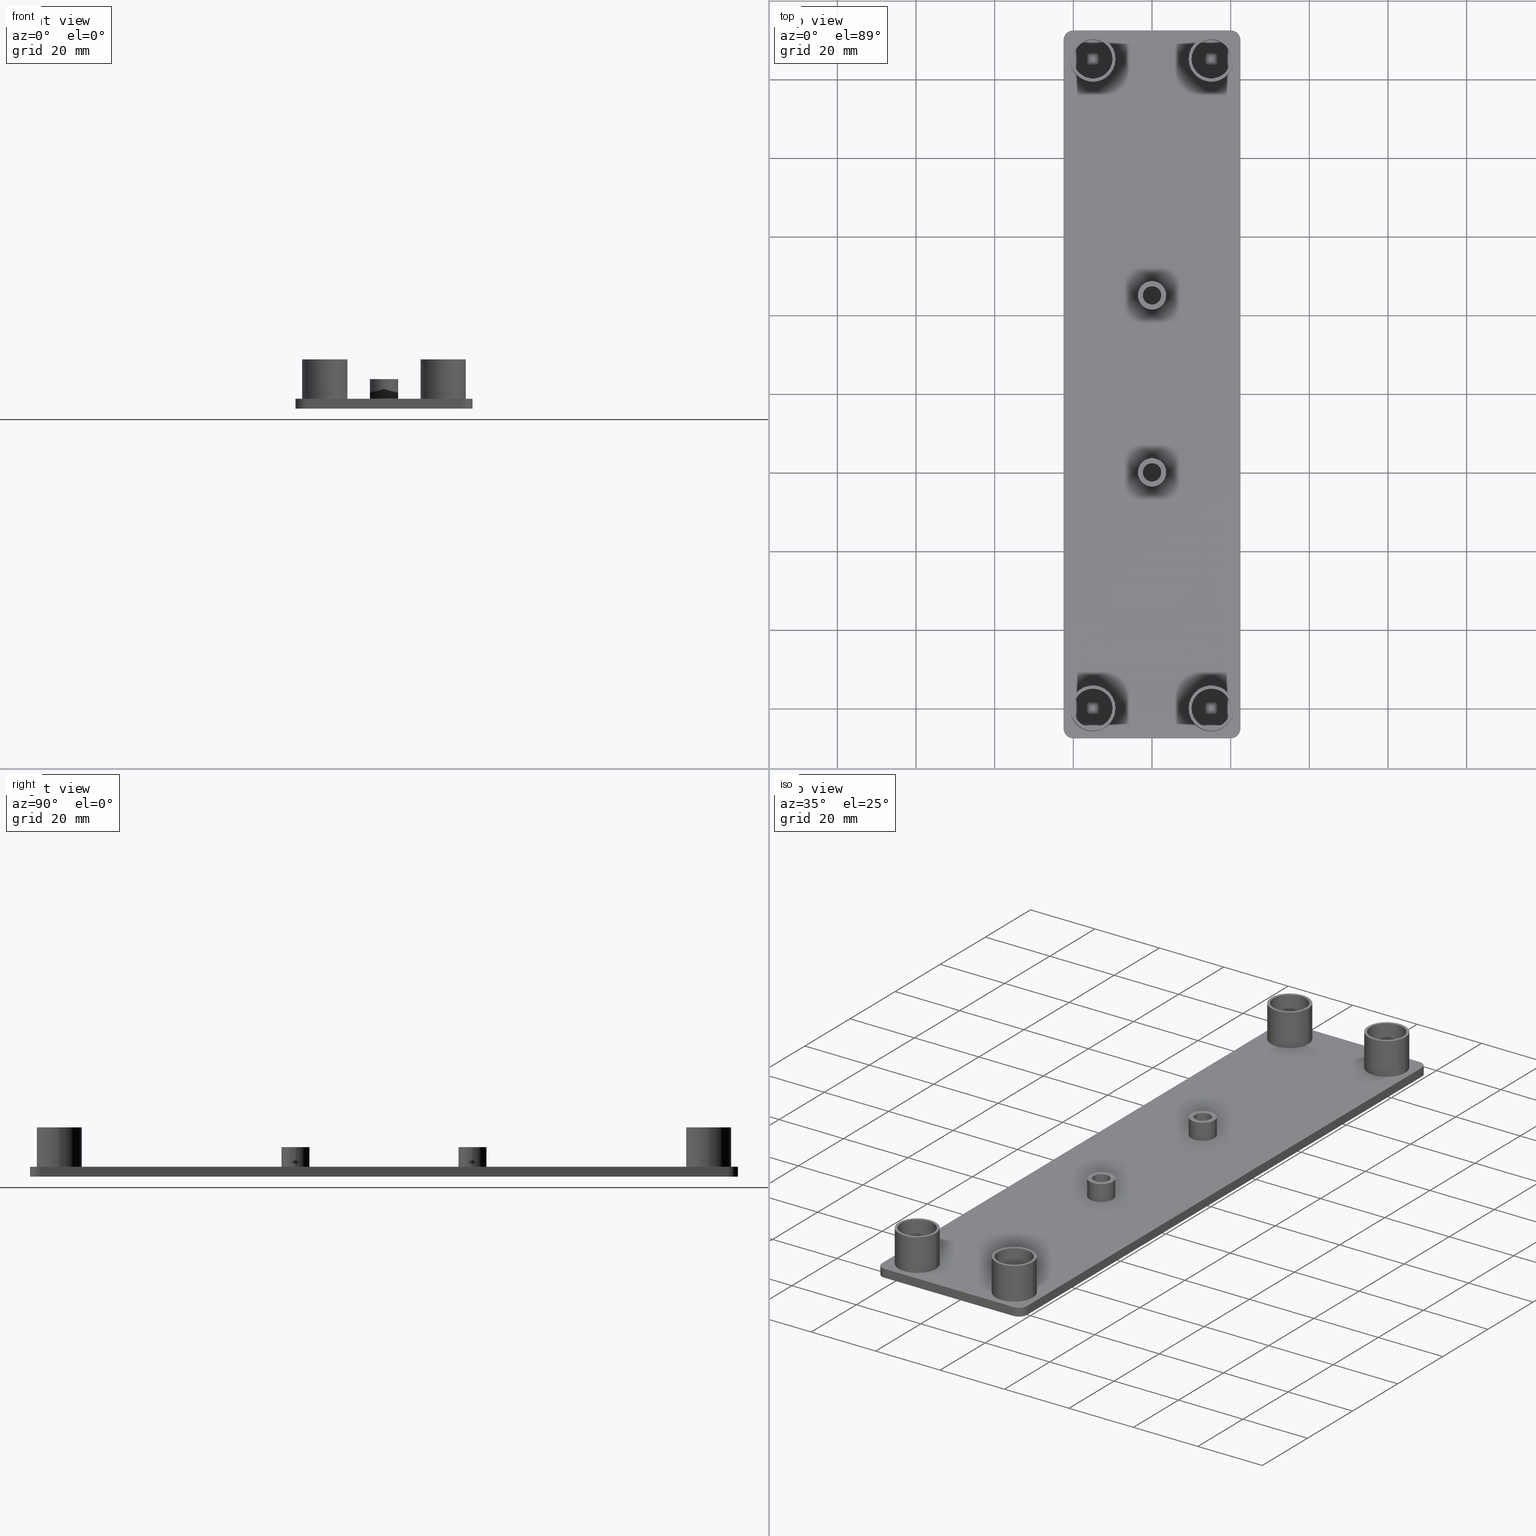
[diagram: canonical four-view strip — front | top / right | iso, engineering-drawing reading convention]
A machine part, canonical four-view strip (front | top / right | iso — engineering-drawing reading convention). The complete STEP part file that produces these views, byte-faithful:
ISO-10303-21;
HEADER;
/****************************************************************
 * Generated by software with PDE/Lib inside                    *
 * PDElib Version v4.4, created Mon 02/23/2004                  *
 * International Technegroup Inc. (www.iti-oh.com)              *
 ****************************************************************/
FILE_DESCRIPTION(('STEP AP203'),'2;1');
FILE_NAME('18.070.00.stp','2011-03-07T08:47:42',(''),(''),'2009.3.110','THINKDESIGN','');
FILE_SCHEMA(('CONFIG_CONTROL_DESIGN'));
ENDSEC;
DATA;
#2=CARTESIAN_POINT('',(-27.000009683665212,-85.500041855611016,0.0));
#3=DIRECTION('',(0.0,0.0,1.0));
#4=DIRECTION('',(1.0,0.0,0.0));
#5=AXIS2_PLACEMENT_3D('',#2,#3,#4);
#6=PLANE('',#5);
#7=CARTESIAN_POINT('',(10.049977999959527,105.049999999579540,0.0));
#8=VERTEX_POINT('',#7);
#9=CARTESIAN_POINT('',(20.049977999919520,105.049999999579540,0.0));
#10=VERTEX_POINT('',#9);
#11=CARTESIAN_POINT('',(15.049977999939529,105.049999999579540,0.0));
#12=DIRECTION('',(0.0,0.0,-1.0));
#13=DIRECTION('',(1.0,0.0,0.0));
#14=AXIS2_PLACEMENT_3D('',#11,#12,#13);
#15=CIRCLE('',#14,4.999999999980001);
#16=EDGE_CURVE('',#8,#10,#15,.T.);
#17=ORIENTED_EDGE('',*,*,#16,.F.);
#18=CARTESIAN_POINT('',(15.049977999939529,105.049999999579540,0.0));
#19=DIRECTION('',(0.0,0.0,-1.0));
#20=DIRECTION('',(1.0,0.0,0.0));
#21=AXIS2_PLACEMENT_3D('',#18,#19,#20);
#22=CIRCLE('',#21,4.999999999980001);
#23=EDGE_CURVE('',#10,#8,#22,.T.);
#24=ORIENTED_EDGE('',*,*,#23,.F.);
#25=EDGE_LOOP('',(#17,#24));
#26=FACE_OUTER_BOUND('',#25,.T.);
#27=ADVANCED_FACE('',(#26),#6,.T.);
#28=CARTESIAN_POINT('',(-27.000009683665212,-85.500041855611016,0.0));
#29=DIRECTION('',(0.0,0.0,1.0));
#30=DIRECTION('',(1.0,0.0,0.0));
#31=AXIS2_PLACEMENT_3D('',#28,#29,#30);
#32=PLANE('',#31);
#33=CARTESIAN_POINT('',(-20.050021999919874,105.050044999579770,0.0));
#34=VERTEX_POINT('',#33);
#35=CARTESIAN_POINT('',(-10.050021999959881,105.050044999579770,0.0));
#36=VERTEX_POINT('',#35);
#37=CARTESIAN_POINT('',(-15.050021999939872,105.050044999579770,0.0));
#38=DIRECTION('',(0.0,0.0,-1.0));
#39=DIRECTION('',(1.0,0.0,0.0));
#40=AXIS2_PLACEMENT_3D('',#37,#38,#39);
#41=CIRCLE('',#40,4.999999999980001);
#42=EDGE_CURVE('',#34,#36,#41,.T.);
#43=ORIENTED_EDGE('',*,*,#42,.F.);
#44=CARTESIAN_POINT('',(-15.050021999939872,105.050044999579770,0.0));
#45=DIRECTION('',(0.0,0.0,-1.0));
#46=DIRECTION('',(1.0,0.0,0.0));
#47=AXIS2_PLACEMENT_3D('',#44,#45,#46);
#48=CIRCLE('',#47,4.999999999980001);
#49=EDGE_CURVE('',#36,#34,#48,.T.);
#50=ORIENTED_EDGE('',*,*,#49,.F.);
#51=EDGE_LOOP('',(#43,#50));
#52=FACE_OUTER_BOUND('',#51,.T.);
#53=ADVANCED_FACE('',(#52),#32,.T.);
#54=CARTESIAN_POINT('',(-27.000009683665212,-85.500041855611016,0.0));
#55=DIRECTION('',(0.0,0.0,1.0));
#56=DIRECTION('',(1.0,0.0,0.0));
#57=AXIS2_PLACEMENT_3D('',#54,#55,#56);
#58=PLANE('',#57);
#59=CARTESIAN_POINT('',(-2.349999999990601,44.999999999819920,0.0));
#60=VERTEX_POINT('',#59);
#61=CARTESIAN_POINT('',(2.349999999990814,44.999999999819920,0.0));
#62=VERTEX_POINT('',#61);
#63=CARTESIAN_POINT('',(0.0,44.999999999819920,0.0));
#64=DIRECTION('',(0.0,0.0,-1.0));
#65=DIRECTION('',(1.0,0.0,0.0));
#66=AXIS2_PLACEMENT_3D('',#63,#64,#65);
#67=CIRCLE('',#66,2.349999999990601);
#68=EDGE_CURVE('',#60,#62,#67,.T.);
#69=ORIENTED_EDGE('',*,*,#68,.F.);
#70=CARTESIAN_POINT('',(0.0,44.999999999819920,0.0));
#71=DIRECTION('',(0.0,0.0,-1.0));
#72=DIRECTION('',(1.0,0.0,0.0));
#73=AXIS2_PLACEMENT_3D('',#70,#71,#72);
#74=CIRCLE('',#73,2.349999999990601);
#75=EDGE_CURVE('',#62,#60,#74,.T.);
#76=ORIENTED_EDGE('',*,*,#75,.F.);
#77=EDGE_LOOP('',(#69,#76));
#78=FACE_OUTER_BOUND('',#77,.T.);
#79=ADVANCED_FACE('',(#78),#58,.T.);
#80=CARTESIAN_POINT('',(-27.000009683665212,-85.500041855611016,0.0));
#81=DIRECTION('',(0.0,0.0,1.0));
#82=DIRECTION('',(1.0,0.0,0.0));
#83=AXIS2_PLACEMENT_3D('',#80,#81,#82);
#84=PLANE('',#83);
#85=CARTESIAN_POINT('',(-2.349999999990601,0.0,0.0));
#86=VERTEX_POINT('',#85);
#87=CARTESIAN_POINT('',(2.349999999990814,0.0,0.0));
#88=VERTEX_POINT('',#87);
#89=CARTESIAN_POINT('',(0.0,0.0,0.0));
#90=DIRECTION('',(0.0,0.0,-1.0));
#91=DIRECTION('',(1.0,0.0,0.0));
#92=AXIS2_PLACEMENT_3D('',#89,#90,#91);
#93=CIRCLE('',#92,2.349999999990601);
#94=EDGE_CURVE('',#86,#88,#93,.T.);
#95=ORIENTED_EDGE('',*,*,#94,.F.);
#96=CARTESIAN_POINT('',(0.0,0.0,0.0));
#97=DIRECTION('',(0.0,0.0,-1.0));
#98=DIRECTION('',(1.0,0.0,0.0));
#99=AXIS2_PLACEMENT_3D('',#96,#97,#98);
#100=CIRCLE('',#99,2.349999999990601);
#101=EDGE_CURVE('',#88,#86,#100,.T.);
#102=ORIENTED_EDGE('',*,*,#101,.F.);
#103=EDGE_LOOP('',(#95,#102));
#104=FACE_OUTER_BOUND('',#103,.T.);
#105=ADVANCED_FACE('',(#104),#84,.T.);
#106=CARTESIAN_POINT('',(-27.000009683665212,-85.500041855611016,0.0));
#107=DIRECTION('',(0.0,0.0,1.0));
#108=DIRECTION('',(1.0,0.0,0.0));
#109=AXIS2_PLACEMENT_3D('',#106,#107,#108);
#110=PLANE('',#109);
#111=CARTESIAN_POINT('',(-20.050018999916130,-60.050044999759848,0.0));
#112=VERTEX_POINT('',#111);
#113=CARTESIAN_POINT('',(-10.050018999956137,-60.050044999759848,0.0));
#114=VERTEX_POINT('',#113);
#115=CARTESIAN_POINT('',(-15.050018999936128,-60.050044999759848,0.0));
#116=DIRECTION('',(0.0,0.0,-1.0));
#117=DIRECTION('',(1.0,0.0,0.0));
#118=AXIS2_PLACEMENT_3D('',#115,#116,#117);
#119=CIRCLE('',#118,4.999999999980001);
#120=EDGE_CURVE('',#112,#114,#119,.T.);
#121=ORIENTED_EDGE('',*,*,#120,.F.);
#122=CARTESIAN_POINT('',(-15.050018999936128,-60.050044999759848,0.0));
#123=DIRECTION('',(0.0,0.0,-1.0));
#124=DIRECTION('',(1.0,0.0,0.0));
#125=AXIS2_PLACEMENT_3D('',#122,#123,#124);
#126=CIRCLE('',#125,4.999999999980001);
#127=EDGE_CURVE('',#114,#112,#126,.T.);
#128=ORIENTED_EDGE('',*,*,#127,.F.);
#129=EDGE_LOOP('',(#121,#128));
#130=FACE_OUTER_BOUND('',#129,.T.);
#131=ADVANCED_FACE('',(#130),#110,.T.);
#132=CARTESIAN_POINT('',(-27.000009683665212,-85.500041855611016,0.0));
#133=DIRECTION('',(0.0,0.0,1.0));
#134=DIRECTION('',(1.0,0.0,0.0));
#135=AXIS2_PLACEMENT_3D('',#132,#133,#134);
#136=PLANE('',#135);
#137=CARTESIAN_POINT('',(10.049980999963726,-60.050044999759848,0.0));
#138=VERTEX_POINT('',#137);
#139=CARTESIAN_POINT('',(20.049980999923719,-60.050044999759848,0.0));
#140=VERTEX_POINT('',#139);
#141=CARTESIAN_POINT('',(15.049980999943728,-60.050044999759848,0.0));
#142=DIRECTION('',(0.0,0.0,-1.0));
#143=DIRECTION('',(1.0,0.0,0.0));
#144=AXIS2_PLACEMENT_3D('',#141,#142,#143);
#145=CIRCLE('',#144,4.999999999980001);
#146=EDGE_CURVE('',#138,#140,#145,.T.);
#147=ORIENTED_EDGE('',*,*,#146,.F.);
#148=CARTESIAN_POINT('',(15.049980999943728,-60.050044999759848,0.0));
#149=DIRECTION('',(0.0,0.0,-1.0));
#150=DIRECTION('',(1.0,0.0,0.0));
#151=AXIS2_PLACEMENT_3D('',#148,#149,#150);
#152=CIRCLE('',#151,4.999999999980001);
#153=EDGE_CURVE('',#140,#138,#152,.T.);
#154=ORIENTED_EDGE('',*,*,#153,.F.);
#155=EDGE_LOOP('',(#147,#154));
#156=FACE_OUTER_BOUND('',#155,.T.);
#157=ADVANCED_FACE('',(#156),#136,.T.);
#158=CARTESIAN_POINT('',(15.049980999943728,-60.050044999759848,0.0));
#159=DIRECTION('',(0.0,0.0,1.0));
#160=DIRECTION('',(1.0,0.0,0.0));
#161=AXIS2_PLACEMENT_3D('',#158,#159,#160);
#162=CYLINDRICAL_SURFACE('',#161,5.749999999977001);
#163=CARTESIAN_POINT('',(9.299980999966728,-60.050044999759848,10.0));
#164=VERTEX_POINT('',#163);
#165=CARTESIAN_POINT('',(20.799980999920535,-60.050044999759848,10.0));
#166=VERTEX_POINT('',#165);
#167=CARTESIAN_POINT('',(15.049980999943728,-60.050044999759848,10.0));
#168=DIRECTION('',(0.0,0.0,1.0));
#169=DIRECTION('',(1.0,0.0,0.0));
#170=AXIS2_PLACEMENT_3D('',#167,#168,#169);
#171=CIRCLE('',#170,5.749999999977001);
#172=EDGE_CURVE('',#164,#166,#171,.T.);
#173=ORIENTED_EDGE('',*,*,#172,.F.);
#174=CARTESIAN_POINT('',(15.049980999943728,-60.050044999759848,10.0));
#175=DIRECTION('',(0.0,0.0,1.0));
#176=DIRECTION('',(1.0,0.0,0.0));
#177=AXIS2_PLACEMENT_3D('',#174,#175,#176);
#178=CIRCLE('',#177,5.749999999977001);
#179=EDGE_CURVE('',#166,#164,#178,.T.);
#180=ORIENTED_EDGE('',*,*,#179,.F.);
#181=CARTESIAN_POINT('',(20.799980999920535,-60.050044999759848,0.0));
#182=VERTEX_POINT('',#181);
#183=CARTESIAN_POINT('',(20.799980999920535,-60.050044999759848,0.0));
#184=DIRECTION('',(0.0,0.0,1.0));
#185=VECTOR('',#184,10.0);
#186=LINE('',#183,#185);
#187=EDGE_CURVE('',#182,#166,#186,.T.);
#188=ORIENTED_EDGE('',*,*,#187,.F.);
#189=CARTESIAN_POINT('',(9.299980999966728,-60.050044999759848,0.0));
#190=VERTEX_POINT('',#189);
#191=CARTESIAN_POINT('',(15.049980999943728,-60.050044999759848,0.0));
#192=DIRECTION('',(0.0,0.0,1.0));
#193=DIRECTION('',(1.0,0.0,0.0));
#194=AXIS2_PLACEMENT_3D('',#191,#192,#193);
#195=CIRCLE('',#194,5.749999999977001);
#196=EDGE_CURVE('',#182,#190,#195,.T.);
#197=ORIENTED_EDGE('',*,*,#196,.T.);
#198=CARTESIAN_POINT('',(15.049980999943728,-60.050044999759848,0.0));
#199=DIRECTION('',(0.0,0.0,1.0));
#200=DIRECTION('',(1.0,0.0,0.0));
#201=AXIS2_PLACEMENT_3D('',#198,#199,#200);
#202=CIRCLE('',#201,5.749999999977001);
#203=EDGE_CURVE('',#190,#182,#202,.T.);
#204=ORIENTED_EDGE('',*,*,#203,.T.);
#205=ORIENTED_EDGE('',*,*,#187,.T.);
#206=EDGE_LOOP('',(#173,#180,#188,#197,#204,#205));
#207=FACE_OUTER_BOUND('',#206,.T.);
#208=ADVANCED_FACE('',(#207),#162,.T.);
#209=CARTESIAN_POINT('',(15.049980999943728,-60.050044999759848,0.0));
#210=DIRECTION('',(0.0,0.0,-1.0));
#211=DIRECTION('',(1.0,-2.449294E-016,0.0));
#212=AXIS2_PLACEMENT_3D('',#209,#210,#211);
#213=CYLINDRICAL_SURFACE('',#212,4.999999999980001);
#214=CARTESIAN_POINT('',(10.049980999963726,-60.050044999759848,10.0));
#215=VERTEX_POINT('',#214);
#216=CARTESIAN_POINT('',(20.049980999923719,-60.050044999759848,10.0));
#217=VERTEX_POINT('',#216);
#218=CARTESIAN_POINT('',(15.049980999943728,-60.050044999759848,10.0));
#219=DIRECTION('',(0.0,0.0,-1.0));
#220=DIRECTION('',(1.0,0.0,0.0));
#221=AXIS2_PLACEMENT_3D('',#218,#219,#220);
#222=CIRCLE('',#221,4.999999999980001);
#223=EDGE_CURVE('',#215,#217,#222,.T.);
#224=ORIENTED_EDGE('',*,*,#223,.F.);
#225=CARTESIAN_POINT('',(15.049980999943728,-60.050044999759848,10.0));
#226=DIRECTION('',(0.0,0.0,-1.0));
#227=DIRECTION('',(1.0,0.0,0.0));
#228=AXIS2_PLACEMENT_3D('',#225,#226,#227);
#229=CIRCLE('',#228,4.999999999980001);
#230=EDGE_CURVE('',#217,#215,#229,.T.);
#231=ORIENTED_EDGE('',*,*,#230,.F.);
#232=CARTESIAN_POINT('',(20.049980999923719,-60.050044999759848,0.0));
#233=DIRECTION('',(0.0,0.0,1.0));
#234=VECTOR('',#233,10.0);
#235=LINE('',#232,#234);
#236=EDGE_CURVE('',#140,#217,#235,.T.);
#237=ORIENTED_EDGE('',*,*,#236,.F.);
#238=ORIENTED_EDGE('',*,*,#153,.T.);
#239=ORIENTED_EDGE('',*,*,#146,.T.);
#240=ORIENTED_EDGE('',*,*,#236,.T.);
#241=EDGE_LOOP('',(#224,#231,#237,#238,#239,#240));
#242=FACE_OUTER_BOUND('',#241,.T.);
#243=ADVANCED_FACE('',(#242),#213,.F.);
#244=CARTESIAN_POINT('',(8.149976275323752,-66.950049724377095,10.0));
#245=DIRECTION('',(0.0,0.0,1.0));
#246=DIRECTION('',(1.0,0.0,0.0));
#247=AXIS2_PLACEMENT_3D('',#244,#245,#246);
#248=PLANE('',#247);
#249=ORIENTED_EDGE('',*,*,#179,.T.);
#250=ORIENTED_EDGE('',*,*,#172,.T.);
#251=EDGE_LOOP('',(#249,#250));
#252=FACE_OUTER_BOUND('',#251,.T.);
#253=ORIENTED_EDGE('',*,*,#230,.T.);
#254=ORIENTED_EDGE('',*,*,#223,.T.);
#255=EDGE_LOOP('',(#253,#254));
#256=FACE_BOUND('',#255,.T.);
#257=ADVANCED_FACE('',(#252,#256),#248,.T.);
#258=CARTESIAN_POINT('',(-15.050018999936128,-60.050044999759848,0.0));
#259=DIRECTION('',(0.0,0.0,1.0));
#260=DIRECTION('',(1.0,0.0,0.0));
#261=AXIS2_PLACEMENT_3D('',#258,#259,#260);
#262=CYLINDRICAL_SURFACE('',#261,5.749999999977001);
#263=CARTESIAN_POINT('',(-20.800018999913128,-60.050044999759848,10.0));
#264=VERTEX_POINT('',#263);
#265=CARTESIAN_POINT('',(-9.300018999959320,-60.050044999759848,10.0));
#266=VERTEX_POINT('',#265);
#267=CARTESIAN_POINT('',(-15.050018999936128,-60.050044999759848,10.0));
#268=DIRECTION('',(0.0,0.0,1.0));
#269=DIRECTION('',(1.0,0.0,0.0));
#270=AXIS2_PLACEMENT_3D('',#267,#268,#269);
#271=CIRCLE('',#270,5.749999999977001);
#272=EDGE_CURVE('',#264,#266,#271,.T.);
#273=ORIENTED_EDGE('',*,*,#272,.F.);
#274=CARTESIAN_POINT('',(-15.050018999936128,-60.050044999759848,10.0));
#275=DIRECTION('',(0.0,0.0,1.0));
#276=DIRECTION('',(1.0,0.0,0.0));
#277=AXIS2_PLACEMENT_3D('',#274,#275,#276);
#278=CIRCLE('',#277,5.749999999977001);
#279=EDGE_CURVE('',#266,#264,#278,.T.);
#280=ORIENTED_EDGE('',*,*,#279,.F.);
#281=CARTESIAN_POINT('',(-9.300018999959320,-60.050044999759848,0.0));
#282=VERTEX_POINT('',#281);
#283=CARTESIAN_POINT('',(-9.300018999959320,-60.050044999759848,0.0));
#284=DIRECTION('',(0.0,0.0,1.0));
#285=VECTOR('',#284,10.0);
#286=LINE('',#283,#285);
#287=EDGE_CURVE('',#282,#266,#286,.T.);
#288=ORIENTED_EDGE('',*,*,#287,.F.);
#289=CARTESIAN_POINT('',(-20.800018999913128,-60.050044999759848,0.0));
#290=VERTEX_POINT('',#289);
#291=CARTESIAN_POINT('',(-15.050018999936128,-60.050044999759848,0.0));
#292=DIRECTION('',(0.0,0.0,1.0));
#293=DIRECTION('',(1.0,0.0,0.0));
#294=AXIS2_PLACEMENT_3D('',#291,#292,#293);
#295=CIRCLE('',#294,5.749999999977001);
#296=EDGE_CURVE('',#282,#290,#295,.T.);
#297=ORIENTED_EDGE('',*,*,#296,.T.);
#298=CARTESIAN_POINT('',(-15.050018999936128,-60.050044999759848,0.0));
#299=DIRECTION('',(0.0,0.0,1.0));
#300=DIRECTION('',(1.0,0.0,0.0));
#301=AXIS2_PLACEMENT_3D('',#298,#299,#300);
#302=CIRCLE('',#301,5.749999999977001);
#303=EDGE_CURVE('',#290,#282,#302,.T.);
#304=ORIENTED_EDGE('',*,*,#303,.T.);
#305=ORIENTED_EDGE('',*,*,#287,.T.);
#306=EDGE_LOOP('',(#273,#280,#288,#297,#304,#305));
#307=FACE_OUTER_BOUND('',#306,.T.);
#308=ADVANCED_FACE('',(#307),#262,.T.);
#309=CARTESIAN_POINT('',(-15.050018999936128,-60.050044999759848,0.0));
#310=DIRECTION('',(0.0,0.0,-1.0));
#311=DIRECTION('',(1.0,-2.449294E-016,0.0));
#312=AXIS2_PLACEMENT_3D('',#309,#310,#311);
#313=CYLINDRICAL_SURFACE('',#312,4.999999999980001);
#314=CARTESIAN_POINT('',(-20.050018999916130,-60.050044999759848,10.0));
#315=VERTEX_POINT('',#314);
#316=CARTESIAN_POINT('',(-10.050018999956137,-60.050044999759848,10.0));
#317=VERTEX_POINT('',#316);
#318=CARTESIAN_POINT('',(-15.050018999936128,-60.050044999759848,10.0));
#319=DIRECTION('',(0.0,0.0,-1.0));
#320=DIRECTION('',(1.0,0.0,0.0));
#321=AXIS2_PLACEMENT_3D('',#318,#319,#320);
#322=CIRCLE('',#321,4.999999999980001);
#323=EDGE_CURVE('',#315,#317,#322,.T.);
#324=ORIENTED_EDGE('',*,*,#323,.F.);
#325=CARTESIAN_POINT('',(-15.050018999936128,-60.050044999759848,10.0));
#326=DIRECTION('',(0.0,0.0,-1.0));
#327=DIRECTION('',(1.0,0.0,0.0));
#328=AXIS2_PLACEMENT_3D('',#325,#326,#327);
#329=CIRCLE('',#328,4.999999999980001);
#330=EDGE_CURVE('',#317,#315,#329,.T.);
#331=ORIENTED_EDGE('',*,*,#330,.F.);
#332=CARTESIAN_POINT('',(-10.050018999956137,-60.050044999759848,0.0));
#333=DIRECTION('',(0.0,0.0,1.0));
#334=VECTOR('',#333,10.0);
#335=LINE('',#332,#334);
#336=EDGE_CURVE('',#114,#317,#335,.T.);
#337=ORIENTED_EDGE('',*,*,#336,.F.);
#338=ORIENTED_EDGE('',*,*,#127,.T.);
#339=ORIENTED_EDGE('',*,*,#120,.T.);
#340=ORIENTED_EDGE('',*,*,#336,.T.);
#341=EDGE_LOOP('',(#324,#331,#337,#338,#339,#340));
#342=FACE_OUTER_BOUND('',#341,.T.);
#343=ADVANCED_FACE('',(#342),#313,.F.);
#344=CARTESIAN_POINT('',(-21.950023724556104,-66.950049724377095,10.0));
#345=DIRECTION('',(0.0,0.0,1.0));
#346=DIRECTION('',(1.0,0.0,0.0));
#347=AXIS2_PLACEMENT_3D('',#344,#345,#346);
#348=PLANE('',#347);
#349=ORIENTED_EDGE('',*,*,#279,.T.);
#350=ORIENTED_EDGE('',*,*,#272,.T.);
#351=EDGE_LOOP('',(#349,#350));
#352=FACE_OUTER_BOUND('',#351,.T.);
#353=ORIENTED_EDGE('',*,*,#330,.T.);
#354=ORIENTED_EDGE('',*,*,#323,.T.);
#355=EDGE_LOOP('',(#353,#354));
#356=FACE_BOUND('',#355,.T.);
#357=ADVANCED_FACE('',(#352,#356),#348,.T.);
#358=CARTESIAN_POINT('',(0.0,0.0,0.0));
#359=DIRECTION('',(0.0,0.0,1.0));
#360=DIRECTION('',(1.0,0.0,0.0));
#361=AXIS2_PLACEMENT_3D('',#358,#359,#360);
#362=CYLINDRICAL_SURFACE('',#361,3.599999999985601);
#363=CARTESIAN_POINT('',(-3.599999999985601,0.0,5.0));
#364=VERTEX_POINT('',#363);
#365=CARTESIAN_POINT('',(3.599999999985812,0.0,5.0));
#366=VERTEX_POINT('',#365);
#367=CARTESIAN_POINT('',(0.0,0.0,5.0));
#368=DIRECTION('',(0.0,0.0,1.0));
#369=DIRECTION('',(1.0,0.0,0.0));
#370=AXIS2_PLACEMENT_3D('',#367,#368,#369);
#371=CIRCLE('',#370,3.599999999985601);
#372=EDGE_CURVE('',#364,#366,#371,.T.);
#373=ORIENTED_EDGE('',*,*,#372,.F.);
#374=CARTESIAN_POINT('',(0.0,0.0,5.0));
#375=DIRECTION('',(0.0,0.0,1.0));
#376=DIRECTION('',(1.0,0.0,0.0));
#377=AXIS2_PLACEMENT_3D('',#374,#375,#376);
#378=CIRCLE('',#377,3.599999999985601);
#379=EDGE_CURVE('',#366,#364,#378,.T.);
#380=ORIENTED_EDGE('',*,*,#379,.F.);
#381=CARTESIAN_POINT('',(3.599999999985812,0.0,0.0));
#382=VERTEX_POINT('',#381);
#383=CARTESIAN_POINT('',(3.599999999985812,0.0,0.0));
#384=DIRECTION('',(0.0,0.0,1.0));
#385=VECTOR('',#384,5.0);
#386=LINE('',#383,#385);
#387=EDGE_CURVE('',#382,#366,#386,.T.);
#388=ORIENTED_EDGE('',*,*,#387,.F.);
#389=CARTESIAN_POINT('',(-3.599999999985601,0.0,0.0));
#390=VERTEX_POINT('',#389);
#391=CARTESIAN_POINT('',(0.0,0.0,0.0));
#392=DIRECTION('',(0.0,0.0,1.0));
#393=DIRECTION('',(1.0,0.0,0.0));
#394=AXIS2_PLACEMENT_3D('',#391,#392,#393);
#395=CIRCLE('',#394,3.599999999985601);
#396=EDGE_CURVE('',#382,#390,#395,.T.);
#397=ORIENTED_EDGE('',*,*,#396,.T.);
#398=CARTESIAN_POINT('',(0.0,0.0,0.0));
#399=DIRECTION('',(0.0,0.0,1.0));
#400=DIRECTION('',(1.0,0.0,0.0));
#401=AXIS2_PLACEMENT_3D('',#398,#399,#400);
#402=CIRCLE('',#401,3.599999999985601);
#403=EDGE_CURVE('',#390,#382,#402,.T.);
#404=ORIENTED_EDGE('',*,*,#403,.T.);
#405=ORIENTED_EDGE('',*,*,#387,.T.);
#406=EDGE_LOOP('',(#373,#380,#388,#397,#404,#405));
#407=FACE_OUTER_BOUND('',#406,.T.);
#408=ADVANCED_FACE('',(#407),#362,.T.);
#409=CARTESIAN_POINT('',(0.0,0.0,0.0));
#410=DIRECTION('',(0.0,0.0,-1.0));
#411=DIRECTION('',(1.0,-2.449294E-016,0.0));
#412=AXIS2_PLACEMENT_3D('',#409,#410,#411);
#413=CYLINDRICAL_SURFACE('',#412,2.349999999990601);
#414=CARTESIAN_POINT('',(-2.349999999990601,0.0,5.0));
#415=VERTEX_POINT('',#414);
#416=CARTESIAN_POINT('',(2.349999999990814,0.0,5.0));
#417=VERTEX_POINT('',#416);
#418=CARTESIAN_POINT('',(0.0,0.0,5.0));
#419=DIRECTION('',(0.0,0.0,-1.0));
#420=DIRECTION('',(1.0,0.0,0.0));
#421=AXIS2_PLACEMENT_3D('',#418,#419,#420);
#422=CIRCLE('',#421,2.349999999990601);
#423=EDGE_CURVE('',#415,#417,#422,.T.);
#424=ORIENTED_EDGE('',*,*,#423,.F.);
#425=CARTESIAN_POINT('',(0.0,0.0,5.0));
#426=DIRECTION('',(0.0,0.0,-1.0));
#427=DIRECTION('',(1.0,0.0,0.0));
#428=AXIS2_PLACEMENT_3D('',#425,#426,#427);
#429=CIRCLE('',#428,2.349999999990601);
#430=EDGE_CURVE('',#417,#415,#429,.T.);
#431=ORIENTED_EDGE('',*,*,#430,.F.);
#432=CARTESIAN_POINT('',(2.349999999990814,0.0,0.0));
#433=DIRECTION('',(0.0,0.0,1.0));
#434=VECTOR('',#433,5.0);
#435=LINE('',#432,#434);
#436=EDGE_CURVE('',#88,#417,#435,.T.);
#437=ORIENTED_EDGE('',*,*,#436,.F.);
#438=ORIENTED_EDGE('',*,*,#101,.T.);
#439=ORIENTED_EDGE('',*,*,#94,.T.);
#440=ORIENTED_EDGE('',*,*,#436,.T.);
#441=EDGE_LOOP('',(#424,#431,#437,#438,#439,#440));
#442=FACE_OUTER_BOUND('',#441,.T.);
#443=ADVANCED_FACE('',(#442),#413,.F.);
#444=CARTESIAN_POINT('',(-4.320004724464525,-4.320004724462706,5.0));
#445=DIRECTION('',(0.0,0.0,1.0));
#446=DIRECTION('',(1.0,0.0,0.0));
#447=AXIS2_PLACEMENT_3D('',#444,#445,#446);
#448=PLANE('',#447);
#449=ORIENTED_EDGE('',*,*,#379,.T.);
#450=ORIENTED_EDGE('',*,*,#372,.T.);
#451=EDGE_LOOP('',(#449,#450));
#452=FACE_OUTER_BOUND('',#451,.T.);
#453=ORIENTED_EDGE('',*,*,#430,.T.);
#454=ORIENTED_EDGE('',*,*,#423,.T.);
#455=EDGE_LOOP('',(#453,#454));
#456=FACE_BOUND('',#455,.T.);
#457=ADVANCED_FACE('',(#452,#456),#448,.T.);
#458=CARTESIAN_POINT('',(0.0,44.999999999819920,0.0));
#459=DIRECTION('',(0.0,0.0,1.0));
#460=DIRECTION('',(1.0,0.0,0.0));
#461=AXIS2_PLACEMENT_3D('',#458,#459,#460);
#462=CYLINDRICAL_SURFACE('',#461,3.599999999985601);
#463=CARTESIAN_POINT('',(-3.599999999985601,44.999999999819920,5.0));
#464=VERTEX_POINT('',#463);
#465=CARTESIAN_POINT('',(3.599999999985812,44.999999999819920,5.0));
#466=VERTEX_POINT('',#465);
#467=CARTESIAN_POINT('',(0.0,44.999999999819920,5.0));
#468=DIRECTION('',(0.0,0.0,1.0));
#469=DIRECTION('',(1.0,0.0,0.0));
#470=AXIS2_PLACEMENT_3D('',#467,#468,#469);
#471=CIRCLE('',#470,3.599999999985601);
#472=EDGE_CURVE('',#464,#466,#471,.T.);
#473=ORIENTED_EDGE('',*,*,#472,.F.);
#474=CARTESIAN_POINT('',(0.0,44.999999999819920,5.0));
#475=DIRECTION('',(0.0,0.0,1.0));
#476=DIRECTION('',(1.0,0.0,0.0));
#477=AXIS2_PLACEMENT_3D('',#474,#475,#476);
#478=CIRCLE('',#477,3.599999999985601);
#479=EDGE_CURVE('',#466,#464,#478,.T.);
#480=ORIENTED_EDGE('',*,*,#479,.F.);
#481=CARTESIAN_POINT('',(3.599999999985812,44.999999999819920,0.0));
#482=VERTEX_POINT('',#481);
#483=CARTESIAN_POINT('',(3.599999999985812,44.999999999819920,0.0));
#484=DIRECTION('',(0.0,0.0,1.0));
#485=VECTOR('',#484,5.0);
#486=LINE('',#483,#485);
#487=EDGE_CURVE('',#482,#466,#486,.T.);
#488=ORIENTED_EDGE('',*,*,#487,.F.);
#489=CARTESIAN_POINT('',(-3.599999999985601,44.999999999819920,0.0));
#490=VERTEX_POINT('',#489);
#491=CARTESIAN_POINT('',(0.0,44.999999999819920,0.0));
#492=DIRECTION('',(0.0,0.0,1.0));
#493=DIRECTION('',(1.0,0.0,0.0));
#494=AXIS2_PLACEMENT_3D('',#491,#492,#493);
#495=CIRCLE('',#494,3.599999999985601);
#496=EDGE_CURVE('',#482,#490,#495,.T.);
#497=ORIENTED_EDGE('',*,*,#496,.T.);
#498=CARTESIAN_POINT('',(0.0,44.999999999819920,0.0));
#499=DIRECTION('',(0.0,0.0,1.0));
#500=DIRECTION('',(1.0,0.0,0.0));
#501=AXIS2_PLACEMENT_3D('',#498,#499,#500);
#502=CIRCLE('',#501,3.599999999985601);
#503=EDGE_CURVE('',#490,#482,#502,.T.);
#504=ORIENTED_EDGE('',*,*,#503,.T.);
#505=ORIENTED_EDGE('',*,*,#487,.T.);
#506=EDGE_LOOP('',(#473,#480,#488,#497,#504,#505));
#507=FACE_OUTER_BOUND('',#506,.T.);
#508=ADVANCED_FACE('',(#507),#462,.T.);
#509=CARTESIAN_POINT('',(0.0,44.999999999819920,0.0));
#510=DIRECTION('',(0.0,0.0,-1.0));
#511=DIRECTION('',(1.0,-2.449294E-016,0.0));
#512=AXIS2_PLACEMENT_3D('',#509,#510,#511);
#513=CYLINDRICAL_SURFACE('',#512,2.349999999990601);
#514=CARTESIAN_POINT('',(-2.349999999990601,44.999999999819920,5.0));
#515=VERTEX_POINT('',#514);
#516=CARTESIAN_POINT('',(2.349999999990814,44.999999999819920,5.0));
#517=VERTEX_POINT('',#516);
#518=CARTESIAN_POINT('',(0.0,44.999999999819920,5.0));
#519=DIRECTION('',(0.0,0.0,-1.0));
#520=DIRECTION('',(1.0,0.0,0.0));
#521=AXIS2_PLACEMENT_3D('',#518,#519,#520);
#522=CIRCLE('',#521,2.349999999990601);
#523=EDGE_CURVE('',#515,#517,#522,.T.);
#524=ORIENTED_EDGE('',*,*,#523,.F.);
#525=CARTESIAN_POINT('',(0.0,44.999999999819920,5.0));
#526=DIRECTION('',(0.0,0.0,-1.0));
#527=DIRECTION('',(1.0,0.0,0.0));
#528=AXIS2_PLACEMENT_3D('',#525,#526,#527);
#529=CIRCLE('',#528,2.349999999990601);
#530=EDGE_CURVE('',#517,#515,#529,.T.);
#531=ORIENTED_EDGE('',*,*,#530,.F.);
#532=CARTESIAN_POINT('',(2.349999999990814,44.999999999819920,0.0));
#533=DIRECTION('',(0.0,0.0,1.0));
#534=VECTOR('',#533,5.0);
#535=LINE('',#532,#534);
#536=EDGE_CURVE('',#62,#517,#535,.T.);
#537=ORIENTED_EDGE('',*,*,#536,.F.);
#538=ORIENTED_EDGE('',*,*,#75,.T.);
#539=ORIENTED_EDGE('',*,*,#68,.T.);
#540=ORIENTED_EDGE('',*,*,#536,.T.);
#541=EDGE_LOOP('',(#524,#531,#537,#538,#539,#540));
#542=FACE_OUTER_BOUND('',#541,.T.);
#543=ADVANCED_FACE('',(#542),#513,.F.);
#544=CARTESIAN_POINT('',(-4.320004724464525,40.679995275373130,5.0));
#545=DIRECTION('',(0.0,0.0,1.0));
#546=DIRECTION('',(1.0,0.0,0.0));
#547=AXIS2_PLACEMENT_3D('',#544,#545,#546);
#548=PLANE('',#547);
#549=ORIENTED_EDGE('',*,*,#479,.T.);
#550=ORIENTED_EDGE('',*,*,#472,.T.);
#551=EDGE_LOOP('',(#549,#550));
#552=FACE_OUTER_BOUND('',#551,.T.);
#553=ORIENTED_EDGE('',*,*,#530,.T.);
#554=ORIENTED_EDGE('',*,*,#523,.T.);
#555=EDGE_LOOP('',(#553,#554));
#556=FACE_BOUND('',#555,.T.);
#557=ADVANCED_FACE('',(#552,#556),#548,.T.);
#558=CARTESIAN_POINT('',(-15.050021999939872,105.050044999579770,0.0));
#559=DIRECTION('',(0.0,0.0,1.0));
#560=DIRECTION('',(1.0,0.0,0.0));
#561=AXIS2_PLACEMENT_3D('',#558,#559,#560);
#562=CYLINDRICAL_SURFACE('',#561,5.749999999977001);
#563=CARTESIAN_POINT('',(-20.800021999916872,105.050044999579770,10.0));
#564=VERTEX_POINT('',#563);
#565=CARTESIAN_POINT('',(-9.300021999963064,105.050044999579770,10.0));
#566=VERTEX_POINT('',#565);
#567=CARTESIAN_POINT('',(-15.050021999939872,105.050044999579770,10.0));
#568=DIRECTION('',(0.0,0.0,1.0));
#569=DIRECTION('',(1.0,0.0,0.0));
#570=AXIS2_PLACEMENT_3D('',#567,#568,#569);
#571=CIRCLE('',#570,5.749999999977001);
#572=EDGE_CURVE('',#564,#566,#571,.T.);
#573=ORIENTED_EDGE('',*,*,#572,.F.);
#574=CARTESIAN_POINT('',(-15.050021999939872,105.050044999579770,10.0));
#575=DIRECTION('',(0.0,0.0,1.0));
#576=DIRECTION('',(1.0,0.0,0.0));
#577=AXIS2_PLACEMENT_3D('',#574,#575,#576);
#578=CIRCLE('',#577,5.749999999977001);
#579=EDGE_CURVE('',#566,#564,#578,.T.);
#580=ORIENTED_EDGE('',*,*,#579,.F.);
#581=CARTESIAN_POINT('',(-9.300021999963064,105.050044999579770,0.0));
#582=VERTEX_POINT('',#581);
#583=CARTESIAN_POINT('',(-9.300021999963064,105.050044999579770,0.0));
#584=DIRECTION('',(0.0,0.0,1.0));
#585=VECTOR('',#584,10.0);
#586=LINE('',#583,#585);
#587=EDGE_CURVE('',#582,#566,#586,.T.);
#588=ORIENTED_EDGE('',*,*,#587,.F.);
#589=CARTESIAN_POINT('',(-20.800021999916872,105.050044999579770,0.0));
#590=VERTEX_POINT('',#589);
#591=CARTESIAN_POINT('',(-15.050021999939872,105.050044999579770,0.0));
#592=DIRECTION('',(0.0,0.0,1.0));
#593=DIRECTION('',(1.0,0.0,0.0));
#594=AXIS2_PLACEMENT_3D('',#591,#592,#593);
#595=CIRCLE('',#594,5.749999999977001);
#596=EDGE_CURVE('',#582,#590,#595,.T.);
#597=ORIENTED_EDGE('',*,*,#596,.T.);
#598=CARTESIAN_POINT('',(-15.050021999939872,105.050044999579770,0.0));
#599=DIRECTION('',(0.0,0.0,1.0));
#600=DIRECTION('',(1.0,0.0,0.0));
#601=AXIS2_PLACEMENT_3D('',#598,#599,#600);
#602=CIRCLE('',#601,5.749999999977001);
#603=EDGE_CURVE('',#590,#582,#602,.T.);
#604=ORIENTED_EDGE('',*,*,#603,.T.);
#605=ORIENTED_EDGE('',*,*,#587,.T.);
#606=EDGE_LOOP('',(#573,#580,#588,#597,#604,#605));
#607=FACE_OUTER_BOUND('',#606,.T.);
#608=ADVANCED_FACE('',(#607),#562,.T.);
#609=CARTESIAN_POINT('',(-15.050021999939872,105.050044999579770,0.0));
#610=DIRECTION('',(0.0,0.0,-1.0));
#611=DIRECTION('',(1.0,-2.449294E-016,0.0));
#612=AXIS2_PLACEMENT_3D('',#609,#610,#611);
#613=CYLINDRICAL_SURFACE('',#612,4.999999999980001);
#614=CARTESIAN_POINT('',(-20.050021999919874,105.050044999579770,10.0));
#615=VERTEX_POINT('',#614);
#616=CARTESIAN_POINT('',(-10.050021999959881,105.050044999579770,10.0));
#617=VERTEX_POINT('',#616);
#618=CARTESIAN_POINT('',(-15.050021999939872,105.050044999579770,10.0));
#619=DIRECTION('',(0.0,0.0,-1.0));
#620=DIRECTION('',(1.0,0.0,0.0));
#621=AXIS2_PLACEMENT_3D('',#618,#619,#620);
#622=CIRCLE('',#621,4.999999999980001);
#623=EDGE_CURVE('',#615,#617,#622,.T.);
#624=ORIENTED_EDGE('',*,*,#623,.F.);
#625=CARTESIAN_POINT('',(-15.050021999939872,105.050044999579770,10.0));
#626=DIRECTION('',(0.0,0.0,-1.0));
#627=DIRECTION('',(1.0,0.0,0.0));
#628=AXIS2_PLACEMENT_3D('',#625,#626,#627);
#629=CIRCLE('',#628,4.999999999980001);
#630=EDGE_CURVE('',#617,#615,#629,.T.);
#631=ORIENTED_EDGE('',*,*,#630,.F.);
#632=CARTESIAN_POINT('',(-10.050021999959881,105.050044999579770,0.0));
#633=DIRECTION('',(0.0,0.0,1.0));
#634=VECTOR('',#633,10.0);
#635=LINE('',#632,#634);
#636=EDGE_CURVE('',#36,#617,#635,.T.);
#637=ORIENTED_EDGE('',*,*,#636,.F.);
#638=ORIENTED_EDGE('',*,*,#49,.T.);
#639=ORIENTED_EDGE('',*,*,#42,.T.);
#640=ORIENTED_EDGE('',*,*,#636,.T.);
#641=EDGE_LOOP('',(#624,#631,#637,#638,#639,#640));
#642=FACE_OUTER_BOUND('',#641,.T.);
#643=ADVANCED_FACE('',(#642),#613,.F.);
#644=CARTESIAN_POINT('',(-21.950026724559848,98.150040274987987,10.0));
#645=DIRECTION('',(0.0,0.0,1.0));
#646=DIRECTION('',(1.0,0.0,0.0));
#647=AXIS2_PLACEMENT_3D('',#644,#645,#646);
#648=PLANE('',#647);
#649=ORIENTED_EDGE('',*,*,#579,.T.);
#650=ORIENTED_EDGE('',*,*,#572,.T.);
#651=EDGE_LOOP('',(#649,#650));
#652=FACE_OUTER_BOUND('',#651,.T.);
#653=ORIENTED_EDGE('',*,*,#630,.T.);
#654=ORIENTED_EDGE('',*,*,#623,.T.);
#655=EDGE_LOOP('',(#653,#654));
#656=FACE_BOUND('',#655,.T.);
#657=ADVANCED_FACE('',(#652,#656),#648,.T.);
#658=CARTESIAN_POINT('',(15.049977999939529,105.049999999579540,0.0));
#659=DIRECTION('',(0.0,0.0,1.0));
#660=DIRECTION('',(1.0,0.0,0.0));
#661=AXIS2_PLACEMENT_3D('',#658,#659,#660);
#662=CYLINDRICAL_SURFACE('',#661,5.749999999977001);
#663=CARTESIAN_POINT('',(9.299977999962529,105.049999999579540,10.0));
#664=VERTEX_POINT('',#663);
#665=CARTESIAN_POINT('',(20.799977999916337,105.049999999579540,10.0));
#666=VERTEX_POINT('',#665);
#667=CARTESIAN_POINT('',(15.049977999939529,105.049999999579540,10.0));
#668=DIRECTION('',(0.0,0.0,1.0));
#669=DIRECTION('',(1.0,0.0,0.0));
#670=AXIS2_PLACEMENT_3D('',#667,#668,#669);
#671=CIRCLE('',#670,5.749999999977001);
#672=EDGE_CURVE('',#664,#666,#671,.T.);
#673=ORIENTED_EDGE('',*,*,#672,.F.);
#674=CARTESIAN_POINT('',(15.049977999939529,105.049999999579540,10.0));
#675=DIRECTION('',(0.0,0.0,1.0));
#676=DIRECTION('',(1.0,0.0,0.0));
#677=AXIS2_PLACEMENT_3D('',#674,#675,#676);
#678=CIRCLE('',#677,5.749999999977001);
#679=EDGE_CURVE('',#666,#664,#678,.T.);
#680=ORIENTED_EDGE('',*,*,#679,.F.);
#681=CARTESIAN_POINT('',(20.799977999916337,105.049999999579540,0.0));
#682=VERTEX_POINT('',#681);
#683=CARTESIAN_POINT('',(20.799977999916337,105.049999999579540,0.0));
#684=DIRECTION('',(0.0,0.0,1.0));
#685=VECTOR('',#684,10.0);
#686=LINE('',#683,#685);
#687=EDGE_CURVE('',#682,#666,#686,.T.);
#688=ORIENTED_EDGE('',*,*,#687,.F.);
#689=CARTESIAN_POINT('',(9.299977999962529,105.049999999579540,0.0));
#690=VERTEX_POINT('',#689);
#691=CARTESIAN_POINT('',(15.049977999939529,105.049999999579540,0.0));
#692=DIRECTION('',(0.0,0.0,1.0));
#693=DIRECTION('',(1.0,0.0,0.0));
#694=AXIS2_PLACEMENT_3D('',#691,#692,#693);
#695=CIRCLE('',#694,5.749999999977001);
#696=EDGE_CURVE('',#682,#690,#695,.T.);
#697=ORIENTED_EDGE('',*,*,#696,.T.);
#698=CARTESIAN_POINT('',(15.049977999939529,105.049999999579540,0.0));
#699=DIRECTION('',(0.0,0.0,1.0));
#700=DIRECTION('',(1.0,0.0,0.0));
#701=AXIS2_PLACEMENT_3D('',#698,#699,#700);
#702=CIRCLE('',#701,5.749999999977001);
#703=EDGE_CURVE('',#690,#682,#702,.T.);
#704=ORIENTED_EDGE('',*,*,#703,.T.);
#705=ORIENTED_EDGE('',*,*,#687,.T.);
#706=EDGE_LOOP('',(#673,#680,#688,#697,#704,#705));
#707=FACE_OUTER_BOUND('',#706,.T.);
#708=ADVANCED_FACE('',(#707),#662,.T.);
#709=CARTESIAN_POINT('',(15.049977999939529,105.049999999579540,0.0));
#710=DIRECTION('',(0.0,0.0,-1.0));
#711=DIRECTION('',(1.0,-2.449294E-016,0.0));
#712=AXIS2_PLACEMENT_3D('',#709,#710,#711);
#713=CYLINDRICAL_SURFACE('',#712,4.999999999980001);
#714=CARTESIAN_POINT('',(10.049977999959527,105.049999999579540,10.0));
#715=VERTEX_POINT('',#714);
#716=CARTESIAN_POINT('',(20.049977999919520,105.049999999579540,10.0));
#717=VERTEX_POINT('',#716);
#718=CARTESIAN_POINT('',(15.049977999939529,105.049999999579540,10.0));
#719=DIRECTION('',(0.0,0.0,-1.0));
#720=DIRECTION('',(1.0,0.0,0.0));
#721=AXIS2_PLACEMENT_3D('',#718,#719,#720);
#722=CIRCLE('',#721,4.999999999980001);
#723=EDGE_CURVE('',#715,#717,#722,.T.);
#724=ORIENTED_EDGE('',*,*,#723,.F.);
#725=CARTESIAN_POINT('',(15.049977999939529,105.049999999579540,10.0));
#726=DIRECTION('',(0.0,0.0,-1.0));
#727=DIRECTION('',(1.0,0.0,0.0));
#728=AXIS2_PLACEMENT_3D('',#725,#726,#727);
#729=CIRCLE('',#728,4.999999999980001);
#730=EDGE_CURVE('',#717,#715,#729,.T.);
#731=ORIENTED_EDGE('',*,*,#730,.F.);
#732=CARTESIAN_POINT('',(20.049977999919520,105.049999999579540,0.0));
#733=DIRECTION('',(0.0,0.0,1.0));
#734=VECTOR('',#733,10.0);
#735=LINE('',#732,#734);
#736=EDGE_CURVE('',#10,#717,#735,.T.);
#737=ORIENTED_EDGE('',*,*,#736,.F.);
#738=ORIENTED_EDGE('',*,*,#23,.T.);
#739=ORIENTED_EDGE('',*,*,#16,.T.);
#740=ORIENTED_EDGE('',*,*,#736,.T.);
#741=EDGE_LOOP('',(#724,#731,#737,#738,#739,#740));
#742=FACE_OUTER_BOUND('',#741,.T.);
#743=ADVANCED_FACE('',(#742),#713,.F.);
#744=CARTESIAN_POINT('',(8.149973275319553,98.149995274987759,10.0));
#745=DIRECTION('',(0.0,0.0,1.0));
#746=DIRECTION('',(1.0,0.0,0.0));
#747=AXIS2_PLACEMENT_3D('',#744,#745,#746);
#748=PLANE('',#747);
#749=ORIENTED_EDGE('',*,*,#679,.T.);
#750=ORIENTED_EDGE('',*,*,#672,.T.);
#751=EDGE_LOOP('',(#749,#750));
#752=FACE_OUTER_BOUND('',#751,.T.);
#753=ORIENTED_EDGE('',*,*,#730,.T.);
#754=ORIENTED_EDGE('',*,*,#723,.T.);
#755=EDGE_LOOP('',(#753,#754));
#756=FACE_BOUND('',#755,.T.);
#757=ADVANCED_FACE('',(#752,#756),#748,.T.);
#758=CARTESIAN_POINT('',(-27.000009683665212,-85.500041855611016,-2.500000000000000));
#759=DIRECTION('',(0.0,0.0,1.0));
#760=DIRECTION('',(1.0,0.0,0.0));
#761=AXIS2_PLACEMENT_3D('',#758,#759,#760);
#762=PLANE('',#761);
#763=CARTESIAN_POINT('',(19.999979999913648,112.499999999549800,-2.500000000000000));
#764=VERTEX_POINT('',#763);
#765=CARTESIAN_POINT('',(22.499979999913648,109.999999999549800,-2.500000000000000));
#766=VERTEX_POINT('',#765);
#767=CARTESIAN_POINT('',(19.999979999913648,109.999999999549800,-2.500000000000000));
#768=DIRECTION('',(0.0,0.0,-1.0));
#769=DIRECTION('',(0.0,1.0,0.0));
#770=AXIS2_PLACEMENT_3D('',#767,#768,#769);
#771=CIRCLE('',#770,2.500000000000000);
#772=EDGE_CURVE('',#764,#766,#771,.T.);
#773=ORIENTED_EDGE('',*,*,#772,.T.);
#774=CARTESIAN_POINT('',(22.499979999913648,-65.000000999730219,-2.500000000000000));
#775=VERTEX_POINT('',#774);
#776=CARTESIAN_POINT('',(22.499979999913648,-65.000000999730219,-2.500000000000000));
#777=DIRECTION('',(0.0,1.0,0.0));
#778=VECTOR('',#777,175.000000999280020);
#779=LINE('',#776,#778);
#780=EDGE_CURVE('',#775,#766,#779,.T.);
#781=ORIENTED_EDGE('',*,*,#780,.F.);
#782=CARTESIAN_POINT('',(19.999979999913648,-67.500000999730219,-2.500000000000000));
#783=VERTEX_POINT('',#782);
#784=CARTESIAN_POINT('',(19.999979999913648,-65.000000999730219,-2.500000000000000));
#785=DIRECTION('',(0.0,0.0,-1.0));
#786=DIRECTION('',(1.0,0.0,0.0));
#787=AXIS2_PLACEMENT_3D('',#784,#785,#786);
#788=CIRCLE('',#787,2.500000000000000);
#789=EDGE_CURVE('',#775,#783,#788,.T.);
#790=ORIENTED_EDGE('',*,*,#789,.T.);
#791=CARTESIAN_POINT('',(-19.999973999906160,-67.500000999730219,-2.500000000000000));
#792=VERTEX_POINT('',#791);
#793=CARTESIAN_POINT('',(-19.999973999906160,-67.500000999730219,-2.500000000000000));
#794=DIRECTION('',(1.0,0.0,0.0));
#795=VECTOR('',#794,39.999953999819809);
#796=LINE('',#793,#795);
#797=EDGE_CURVE('',#792,#783,#796,.T.);
#798=ORIENTED_EDGE('',*,*,#797,.F.);
#799=CARTESIAN_POINT('',(-22.499973999906160,-65.000000999730219,-2.500000000000000));
#800=VERTEX_POINT('',#799);
#801=CARTESIAN_POINT('',(-19.999973999906160,-65.000000999730219,-2.500000000000000));
#802=DIRECTION('',(0.0,0.0,-1.0));
#803=DIRECTION('',(0.0,-1.0,0.0));
#804=AXIS2_PLACEMENT_3D('',#801,#802,#803);
#805=CIRCLE('',#804,2.500000000000000);
#806=EDGE_CURVE('',#792,#800,#805,.T.);
#807=ORIENTED_EDGE('',*,*,#806,.T.);
#808=CARTESIAN_POINT('',(-22.499973999906160,109.999999999549800,-2.500000000000000));
#809=VERTEX_POINT('',#808);
#810=CARTESIAN_POINT('',(-22.499973999906160,109.999999999549800,-2.500000000000000));
#811=DIRECTION('',(0.0,-1.0,0.0));
#812=VECTOR('',#811,175.000000999280020);
#813=LINE('',#810,#812);
#814=EDGE_CURVE('',#809,#800,#813,.T.);
#815=ORIENTED_EDGE('',*,*,#814,.F.);
#816=CARTESIAN_POINT('',(-19.999973999906160,112.499999999549800,-2.500000000000000));
#817=VERTEX_POINT('',#816);
#818=CARTESIAN_POINT('',(-19.999973999906160,109.999999999549800,-2.500000000000000));
#819=DIRECTION('',(0.0,0.0,-1.0));
#820=DIRECTION('',(-1.0,0.0,0.0));
#821=AXIS2_PLACEMENT_3D('',#818,#819,#820);
#822=CIRCLE('',#821,2.500000000000000);
#823=EDGE_CURVE('',#809,#817,#822,.T.);
#824=ORIENTED_EDGE('',*,*,#823,.T.);
#825=CARTESIAN_POINT('',(19.999979999913648,112.499999999549800,-2.500000000000000));
#826=DIRECTION('',(-1.0,0.0,0.0));
#827=VECTOR('',#826,39.999953999819809);
#828=LINE('',#825,#827);
#829=EDGE_CURVE('',#764,#817,#828,.T.);
#830=ORIENTED_EDGE('',*,*,#829,.F.);
#831=EDGE_LOOP('',(#773,#781,#790,#798,#807,#815,#824,#830));
#832=FACE_OUTER_BOUND('',#831,.T.);
#833=ADVANCED_FACE('',(#832),#762,.F.);
#834=CARTESIAN_POINT('',(-19.999973999906160,-65.000000999730219,0.0));
#835=DIRECTION('',(0.0,0.0,-1.0));
#836=DIRECTION('',(0.0,-1.0,0.0));
#837=AXIS2_PLACEMENT_3D('',#834,#835,#836);
#838=CYLINDRICAL_SURFACE('',#837,2.500000000000000);
#839=CARTESIAN_POINT('',(-19.999973999906160,-67.500000999730219,0.0));
#840=VERTEX_POINT('',#839);
#841=CARTESIAN_POINT('',(-22.499973999906160,-65.000000999730219,0.0));
#842=VERTEX_POINT('',#841);
#843=CARTESIAN_POINT('',(-19.999973999906160,-65.000000999730219,0.0));
#844=DIRECTION('',(0.0,0.0,-1.0));
#845=DIRECTION('',(0.0,-1.0,0.0));
#846=AXIS2_PLACEMENT_3D('',#843,#844,#845);
#847=CIRCLE('',#846,2.500000000000000);
#848=EDGE_CURVE('',#840,#842,#847,.T.);
#849=ORIENTED_EDGE('',*,*,#848,.T.);
#850=CARTESIAN_POINT('',(-22.499973999906160,-65.000000999730219,0.0));
#851=DIRECTION('',(0.0,0.0,-1.0));
#852=VECTOR('',#851,2.500000000000000);
#853=LINE('',#850,#852);
#854=EDGE_CURVE('',#842,#800,#853,.T.);
#855=ORIENTED_EDGE('',*,*,#854,.T.);
#856=ORIENTED_EDGE('',*,*,#806,.F.);
#857=CARTESIAN_POINT('',(-19.999973999906160,-67.500000999730219,0.0));
#858=DIRECTION('',(0.0,0.0,-1.0));
#859=VECTOR('',#858,2.500000000000000);
#860=LINE('',#857,#859);
#861=EDGE_CURVE('',#840,#792,#860,.T.);
#862=ORIENTED_EDGE('',*,*,#861,.F.);
#863=EDGE_LOOP('',(#849,#855,#856,#862));
#864=FACE_OUTER_BOUND('',#863,.T.);
#865=ADVANCED_FACE('',(#864),#838,.T.);
#866=CARTESIAN_POINT('',(-27.000009683665212,-85.500041855611016,0.0));
#867=DIRECTION('',(0.0,0.0,1.0));
#868=DIRECTION('',(1.0,0.0,0.0));
#869=AXIS2_PLACEMENT_3D('',#866,#867,#868);
#870=PLANE('',#869);
#871=CARTESIAN_POINT('',(19.999979999913648,112.499999999549800,0.0));
#872=VERTEX_POINT('',#871);
#873=CARTESIAN_POINT('',(-19.999973999906160,112.499999999549800,0.0));
#874=VERTEX_POINT('',#873);
#875=CARTESIAN_POINT('',(19.999979999913648,112.499999999549800,0.0));
#876=DIRECTION('',(-1.0,0.0,0.0));
#877=VECTOR('',#876,39.999953999819809);
#878=LINE('',#875,#877);
#879=EDGE_CURVE('',#872,#874,#878,.T.);
#880=ORIENTED_EDGE('',*,*,#879,.T.);
#881=CARTESIAN_POINT('',(-22.499973999906160,109.999999999549800,0.0));
#882=VERTEX_POINT('',#881);
#883=CARTESIAN_POINT('',(-19.999973999906160,109.999999999549800,0.0));
#884=DIRECTION('',(0.0,0.0,-1.0));
#885=DIRECTION('',(-1.0,0.0,0.0));
#886=AXIS2_PLACEMENT_3D('',#883,#884,#885);
#887=CIRCLE('',#886,2.500000000000000);
#888=EDGE_CURVE('',#882,#874,#887,.T.);
#889=ORIENTED_EDGE('',*,*,#888,.F.);
#890=CARTESIAN_POINT('',(-22.499973999906160,109.999999999549800,0.0));
#891=DIRECTION('',(0.0,-1.0,0.0));
#892=VECTOR('',#891,175.000000999280020);
#893=LINE('',#890,#892);
#894=EDGE_CURVE('',#882,#842,#893,.T.);
#895=ORIENTED_EDGE('',*,*,#894,.T.);
#896=ORIENTED_EDGE('',*,*,#848,.F.);
#897=CARTESIAN_POINT('',(19.999979999913648,-67.500000999730219,0.0));
#898=VERTEX_POINT('',#897);
#899=CARTESIAN_POINT('',(-19.999973999906160,-67.500000999730219,0.0));
#900=DIRECTION('',(1.0,0.0,0.0));
#901=VECTOR('',#900,39.999953999819809);
#902=LINE('',#899,#901);
#903=EDGE_CURVE('',#840,#898,#902,.T.);
#904=ORIENTED_EDGE('',*,*,#903,.T.);
#905=CARTESIAN_POINT('',(22.499979999913648,-65.000000999730219,0.0));
#906=VERTEX_POINT('',#905);
#907=CARTESIAN_POINT('',(19.999979999913648,-65.000000999730219,0.0));
#908=DIRECTION('',(0.0,0.0,-1.0));
#909=DIRECTION('',(1.0,0.0,0.0));
#910=AXIS2_PLACEMENT_3D('',#907,#908,#909);
#911=CIRCLE('',#910,2.500000000000000);
#912=EDGE_CURVE('',#906,#898,#911,.T.);
#913=ORIENTED_EDGE('',*,*,#912,.F.);
#914=CARTESIAN_POINT('',(22.499979999913648,109.999999999549800,0.0));
#915=VERTEX_POINT('',#914);
#916=CARTESIAN_POINT('',(22.499979999913648,-65.000000999730219,0.0));
#917=DIRECTION('',(0.0,1.0,0.0));
#918=VECTOR('',#917,175.000000999280020);
#919=LINE('',#916,#918);
#920=EDGE_CURVE('',#906,#915,#919,.T.);
#921=ORIENTED_EDGE('',*,*,#920,.T.);
#922=CARTESIAN_POINT('',(19.999979999913648,109.999999999549800,0.0));
#923=DIRECTION('',(0.0,0.0,-1.0));
#924=DIRECTION('',(0.0,1.0,0.0));
#925=AXIS2_PLACEMENT_3D('',#922,#923,#924);
#926=CIRCLE('',#925,2.500000000000000);
#927=EDGE_CURVE('',#872,#915,#926,.T.);
#928=ORIENTED_EDGE('',*,*,#927,.F.);
#929=EDGE_LOOP('',(#880,#889,#895,#896,#904,#913,#921,#928));
#930=FACE_OUTER_BOUND('',#929,.T.);
#931=ORIENTED_EDGE('',*,*,#203,.F.);
#932=ORIENTED_EDGE('',*,*,#196,.F.);
#933=EDGE_LOOP('',(#931,#932));
#934=FACE_BOUND('',#933,.T.);
#935=ORIENTED_EDGE('',*,*,#303,.F.);
#936=ORIENTED_EDGE('',*,*,#296,.F.);
#937=EDGE_LOOP('',(#935,#936));
#938=FACE_BOUND('',#937,.T.);
#939=ORIENTED_EDGE('',*,*,#403,.F.);
#940=ORIENTED_EDGE('',*,*,#396,.F.);
#941=EDGE_LOOP('',(#939,#940));
#942=FACE_BOUND('',#941,.T.);
#943=ORIENTED_EDGE('',*,*,#503,.F.);
#944=ORIENTED_EDGE('',*,*,#496,.F.);
#945=EDGE_LOOP('',(#943,#944));
#946=FACE_BOUND('',#945,.T.);
#947=ORIENTED_EDGE('',*,*,#603,.F.);
#948=ORIENTED_EDGE('',*,*,#596,.F.);
#949=EDGE_LOOP('',(#947,#948));
#950=FACE_BOUND('',#949,.T.);
#951=ORIENTED_EDGE('',*,*,#703,.F.);
#952=ORIENTED_EDGE('',*,*,#696,.F.);
#953=EDGE_LOOP('',(#951,#952));
#954=FACE_BOUND('',#953,.T.);
#955=ADVANCED_FACE('',(#930,#934,#938,#942,#946,#950,#954),#870,.T.);
#956=CARTESIAN_POINT('',(19.999979999913648,-65.000000999730219,0.0));
#957=DIRECTION('',(0.0,0.0,-1.0));
#958=DIRECTION('',(1.0,0.0,0.0));
#959=AXIS2_PLACEMENT_3D('',#956,#957,#958);
#960=CYLINDRICAL_SURFACE('',#959,2.500000000000000);
#961=ORIENTED_EDGE('',*,*,#912,.T.);
#962=CARTESIAN_POINT('',(19.999979999913648,-67.500000999730219,0.0));
#963=DIRECTION('',(0.0,0.0,-1.0));
#964=VECTOR('',#963,2.500000000000000);
#965=LINE('',#962,#964);
#966=EDGE_CURVE('',#898,#783,#965,.T.);
#967=ORIENTED_EDGE('',*,*,#966,.T.);
#968=ORIENTED_EDGE('',*,*,#789,.F.);
#969=CARTESIAN_POINT('',(22.499979999913648,-65.000000999730219,0.0));
#970=DIRECTION('',(0.0,0.0,-1.0));
#971=VECTOR('',#970,2.500000000000000);
#972=LINE('',#969,#971);
#973=EDGE_CURVE('',#906,#775,#972,.T.);
#974=ORIENTED_EDGE('',*,*,#973,.F.);
#975=EDGE_LOOP('',(#961,#967,#968,#974));
#976=FACE_OUTER_BOUND('',#975,.T.);
#977=ADVANCED_FACE('',(#976),#960,.T.);
#978=CARTESIAN_POINT('',(-19.999973999906160,109.999999999549800,0.0));
#979=DIRECTION('',(0.0,0.0,-1.0));
#980=DIRECTION('',(-1.0,0.0,0.0));
#981=AXIS2_PLACEMENT_3D('',#978,#979,#980);
#982=CYLINDRICAL_SURFACE('',#981,2.500000000000000);
#983=ORIENTED_EDGE('',*,*,#888,.T.);
#984=CARTESIAN_POINT('',(-19.999973999906160,112.499999999549800,0.0));
#985=DIRECTION('',(0.0,0.0,-1.0));
#986=VECTOR('',#985,2.500000000000000);
#987=LINE('',#984,#986);
#988=EDGE_CURVE('',#874,#817,#987,.T.);
#989=ORIENTED_EDGE('',*,*,#988,.T.);
#990=ORIENTED_EDGE('',*,*,#823,.F.);
#991=CARTESIAN_POINT('',(-22.499973999906160,109.999999999549800,0.0));
#992=DIRECTION('',(0.0,0.0,-1.0));
#993=VECTOR('',#992,2.500000000000000);
#994=LINE('',#991,#993);
#995=EDGE_CURVE('',#882,#809,#994,.T.);
#996=ORIENTED_EDGE('',*,*,#995,.F.);
#997=EDGE_LOOP('',(#983,#989,#990,#996));
#998=FACE_OUTER_BOUND('',#997,.T.);
#999=ADVANCED_FACE('',(#998),#982,.T.);
#1000=CARTESIAN_POINT('',(19.999979999913648,109.999999999549800,0.0));
#1001=DIRECTION('',(0.0,0.0,-1.0));
#1002=DIRECTION('',(0.0,1.0,0.0));
#1003=AXIS2_PLACEMENT_3D('',#1000,#1001,#1002);
#1004=CYLINDRICAL_SURFACE('',#1003,2.500000000000000);
#1005=ORIENTED_EDGE('',*,*,#927,.T.);
#1006=CARTESIAN_POINT('',(22.499979999913648,109.999999999549800,0.0));
#1007=DIRECTION('',(0.0,0.0,-1.0));
#1008=VECTOR('',#1007,2.500000000000000);
#1009=LINE('',#1006,#1008);
#1010=EDGE_CURVE('',#915,#766,#1009,.T.);
#1011=ORIENTED_EDGE('',*,*,#1010,.T.);
#1012=ORIENTED_EDGE('',*,*,#772,.F.);
#1013=CARTESIAN_POINT('',(19.999979999913648,112.499999999549800,0.0));
#1014=DIRECTION('',(0.0,0.0,-1.0));
#1015=VECTOR('',#1014,2.500000000000000);
#1016=LINE('',#1013,#1015);
#1017=EDGE_CURVE('',#872,#764,#1016,.T.);
#1018=ORIENTED_EDGE('',*,*,#1017,.F.);
#1019=EDGE_LOOP('',(#1005,#1011,#1012,#1018));
#1020=FACE_OUTER_BOUND('',#1019,.T.);
#1021=ADVANCED_FACE('',(#1020),#1004,.T.);
#1022=CARTESIAN_POINT('',(-22.499973999906160,112.499999999549800,0.0));
#1023=DIRECTION('',(1.0,0.0,0.0));
#1024=DIRECTION('',(0.0,-1.0,0.0));
#1025=AXIS2_PLACEMENT_3D('',#1022,#1023,#1024);
#1026=PLANE('',#1025);
#1027=ORIENTED_EDGE('',*,*,#995,.T.);
#1028=ORIENTED_EDGE('',*,*,#814,.T.);
#1029=ORIENTED_EDGE('',*,*,#854,.F.);
#1030=ORIENTED_EDGE('',*,*,#894,.F.);
#1031=EDGE_LOOP('',(#1027,#1028,#1029,#1030));
#1032=FACE_OUTER_BOUND('',#1031,.T.);
#1033=ADVANCED_FACE('',(#1032),#1026,.F.);
#1034=CARTESIAN_POINT('',(-22.499973999906160,-67.500000999730219,0.0));
#1035=DIRECTION('',(0.0,1.0,0.0));
#1036=DIRECTION('',(1.0,0.0,0.0));
#1037=AXIS2_PLACEMENT_3D('',#1034,#1035,#1036);
#1038=PLANE('',#1037);
#1039=ORIENTED_EDGE('',*,*,#903,.F.);
#1040=ORIENTED_EDGE('',*,*,#861,.T.);
#1041=ORIENTED_EDGE('',*,*,#797,.T.);
#1042=ORIENTED_EDGE('',*,*,#966,.F.);
#1043=EDGE_LOOP('',(#1039,#1040,#1041,#1042));
#1044=FACE_OUTER_BOUND('',#1043,.T.);
#1045=ADVANCED_FACE('',(#1044),#1038,.F.);
#1046=CARTESIAN_POINT('',(22.499979999913648,-67.500000999730219,0.0));
#1047=DIRECTION('',(-1.0,0.0,0.0));
#1048=DIRECTION('',(0.0,1.0,0.0));
#1049=AXIS2_PLACEMENT_3D('',#1046,#1047,#1048);
#1050=PLANE('',#1049);
#1051=ORIENTED_EDGE('',*,*,#920,.F.);
#1052=ORIENTED_EDGE('',*,*,#973,.T.);
#1053=ORIENTED_EDGE('',*,*,#780,.T.);
#1054=ORIENTED_EDGE('',*,*,#1010,.F.);
#1055=EDGE_LOOP('',(#1051,#1052,#1053,#1054));
#1056=FACE_OUTER_BOUND('',#1055,.T.);
#1057=ADVANCED_FACE('',(#1056),#1050,.F.);
#1058=CARTESIAN_POINT('',(22.499979999913648,112.499999999549800,0.0));
#1059=DIRECTION('',(0.0,-1.0,0.0));
#1060=DIRECTION('',(-1.0,0.0,0.0));
#1061=AXIS2_PLACEMENT_3D('',#1058,#1059,#1060);
#1062=PLANE('',#1061);
#1063=ORIENTED_EDGE('',*,*,#1017,.T.);
#1064=ORIENTED_EDGE('',*,*,#829,.T.);
#1065=ORIENTED_EDGE('',*,*,#988,.F.);
#1066=ORIENTED_EDGE('',*,*,#879,.F.);
#1067=EDGE_LOOP('',(#1063,#1064,#1065,#1066));
#1068=FACE_OUTER_BOUND('',#1067,.T.);
#1069=ADVANCED_FACE('',(#1068),#1062,.F.);
#1070=CLOSED_SHELL('',(#27,#53,#79,#105,#131,#157,#208,#243,#257,#308,#343,#357,#408,#443,#457,#508,#543,#557,#608,#643,#657,#708,#743,#757,#833,#865,#955,#977,#999,#1021,#1033,#1045,#1057,#1069));
#1071=MANIFOLD_SOLID_BREP('',#1070);
#1077=(NAMED_UNIT(*)PLANE_ANGLE_UNIT()SI_UNIT($,.RADIAN.));
#1078=DIMENSIONAL_EXPONENTS(0.0,0.0,0.0,0.0,0.0,0.0,0.0);
#1079=PLANE_ANGLE_MEASURE_WITH_UNIT(PLANE_ANGLE_MEASURE(0.017453292500000),#1077);
#1083=(CONVERSION_BASED_UNIT('DEGREE',#1079)NAMED_UNIT(#1078)PLANE_ANGLE_UNIT());
#1087=(NAMED_UNIT(*)SI_UNIT($,.STERADIAN.)SOLID_ANGLE_UNIT());
#1091=(LENGTH_UNIT()NAMED_UNIT(*)SI_UNIT(.MILLI.,.METRE.));
#1093=UNCERTAINTY_MEASURE_WITH_UNIT(LENGTH_MEASURE(0.001000000000000),#1091,'DISTANCE_ACCURACY_VALUE','');
#1095=(GEOMETRIC_REPRESENTATION_CONTEXT(3)GLOBAL_UNCERTAINTY_ASSIGNED_CONTEXT((#1093))GLOBAL_UNIT_ASSIGNED_CONTEXT((#1083,#1087,#1091))REPRESENTATION_CONTEXT('thinkdesign','2009.3.110'));
#1096=ADVANCED_BREP_SHAPE_REPRESENTATION('',(#1071),#1095);
#1097=APPLICATION_CONTEXT('configuration controlled 3D designs of mechanical parts and assemblies');
#1098=APPLICATION_PROTOCOL_DEFINITION('International Standard','config_control_design',1995,#1097);
#1099=MECHANICAL_CONTEXT('None',#1097,'mechanical');
#1100=PRODUCT('None','None','None',(#1099));
#1101=PRODUCT_RELATED_PRODUCT_CATEGORY('detail',$,(#1100));
#1102=PRODUCT_CATEGORY('part',$);
#1103=PRODUCT_CATEGORY_RELATIONSHIP('None','None',#1102,#1101);
#1104=PERSON('PERSON1','None','None',$,$,$);
#1105=ORGANIZATION('','None','None');
#1106=PERSON_AND_ORGANIZATION(#1104,#1105);
#1107=PERSON_AND_ORGANIZATION_ROLE('design_owner');
#1108=CC_DESIGN_PERSON_AND_ORGANIZATION_ASSIGNMENT(#1106,#1107,(#1100));
#1109=PRODUCT_DEFINITION_FORMATION_WITH_SPECIFIED_SOURCE('None','None',#1100,.NOT_KNOWN.);
#1110=PERSON('PERSON2','None','None',$,$,$);
#1111=ORGANIZATION('','None','None');
#1112=PERSON_AND_ORGANIZATION(#1110,#1111);
#1113=PERSON_AND_ORGANIZATION_ROLE('creator');
#1114=CC_DESIGN_PERSON_AND_ORGANIZATION_ASSIGNMENT(#1112,#1113,(#1109));
#1115=PERSON('PERSON3','None','None',$,$,$);
#1116=ORGANIZATION('','None','None');
#1117=PERSON_AND_ORGANIZATION(#1115,#1116);
#1118=PERSON_AND_ORGANIZATION_ROLE('part_supplier');
#1119=CC_DESIGN_PERSON_AND_ORGANIZATION_ASSIGNMENT(#1117,#1118,(#1109));
#1120=APPROVAL_STATUS('approved');
#1121=APPROVAL(#1120,'None');
#1122=PERSON('PERSON4','None','None',$,$,$);
#1123=ORGANIZATION('','None','None');
#1124=PERSON_AND_ORGANIZATION(#1122,#1123);
#1125=APPROVAL_ROLE('None');
#1126=APPROVAL_PERSON_ORGANIZATION(#1124,#1121,#1125);
#1127=CALENDAR_DATE(2011,7,3);
#1128=COORDINATED_UNIVERSAL_TIME_OFFSET(0,0,.AHEAD.);
#1129=LOCAL_TIME(8,47,42.0,#1128);
#1130=DATE_AND_TIME(#1127,#1129);
#1131=APPROVAL_DATE_TIME(#1130,#1121);
#1132=CC_DESIGN_APPROVAL(#1121,(#1109));
#1133=SECURITY_CLASSIFICATION_LEVEL('unclassified');
#1134=SECURITY_CLASSIFICATION('None','None',#1133);
#1135=CC_DESIGN_SECURITY_CLASSIFICATION(#1134,(#1109));
#1136=APPROVAL_STATUS('approved');
#1137=APPROVAL(#1136,'None');
#1138=PERSON('PERSON5','None','None',$,$,$);
#1139=ORGANIZATION('','None','None');
#1140=PERSON_AND_ORGANIZATION(#1138,#1139);
#1141=APPROVAL_ROLE('None');
#1142=APPROVAL_PERSON_ORGANIZATION(#1140,#1137,#1141);
#1143=CALENDAR_DATE(2011,7,3);
#1144=COORDINATED_UNIVERSAL_TIME_OFFSET(0,0,.AHEAD.);
#1145=LOCAL_TIME(8,47,42.0,#1144);
#1146=DATE_AND_TIME(#1143,#1145);
#1147=APPROVAL_DATE_TIME(#1146,#1137);
#1148=CC_DESIGN_APPROVAL(#1137,(#1134));
#1149=PERSON('PERSON6','None','None',$,$,$);
#1150=ORGANIZATION('','None','None');
#1151=PERSON_AND_ORGANIZATION(#1149,#1150);
#1152=PERSON_AND_ORGANIZATION_ROLE('classification_officer');
#1153=CC_DESIGN_PERSON_AND_ORGANIZATION_ASSIGNMENT(#1151,#1152,(#1134));
#1154=DATE_TIME_ROLE('classification_date');
#1155=CALENDAR_DATE(2011,7,3);
#1156=COORDINATED_UNIVERSAL_TIME_OFFSET(0,0,.AHEAD.);
#1157=LOCAL_TIME(8,47,42.0,#1156);
#1158=DATE_AND_TIME(#1155,#1157);
#1159=CC_DESIGN_DATE_AND_TIME_ASSIGNMENT(#1158,#1154,(#1134));
#1160=DESIGN_CONTEXT('part definition',#1097,'design');
#1161=DOCUMENT_TYPE('cad_filename');
#1162=DOCUMENT('None','None','None',#1161);
#1163=PRODUCT_DEFINITION_WITH_ASSOCIATED_DOCUMENTS('None','None',#1109,#1160,(#1162));
#1164=PERSON('PERSON7','None','None',$,$,$);
#1165=ORGANIZATION('','None','None');
#1166=PERSON_AND_ORGANIZATION(#1164,#1165);
#1167=PERSON_AND_ORGANIZATION_ROLE('creator');
#1168=CC_DESIGN_PERSON_AND_ORGANIZATION_ASSIGNMENT(#1166,#1167,(#1163));
#1169=DATE_TIME_ROLE('creation_date');
#1170=CALENDAR_DATE(2011,7,3);
#1171=COORDINATED_UNIVERSAL_TIME_OFFSET(0,0,.AHEAD.);
#1172=LOCAL_TIME(8,47,42.0,#1171);
#1173=DATE_AND_TIME(#1170,#1172);
#1174=CC_DESIGN_DATE_AND_TIME_ASSIGNMENT(#1173,#1169,(#1163));
#1175=APPROVAL_STATUS('approved');
#1176=APPROVAL(#1175,'None');
#1177=PERSON('PERSON8','None','None',$,$,$);
#1178=ORGANIZATION('','None','None');
#1179=PERSON_AND_ORGANIZATION(#1177,#1178);
#1180=APPROVAL_ROLE('None');
#1181=APPROVAL_PERSON_ORGANIZATION(#1179,#1176,#1180);
#1182=CALENDAR_DATE(2011,7,3);
#1183=COORDINATED_UNIVERSAL_TIME_OFFSET(0,0,.AHEAD.);
#1184=LOCAL_TIME(8,47,42.0,#1183);
#1185=DATE_AND_TIME(#1182,#1184);
#1186=APPROVAL_DATE_TIME(#1185,#1176);
#1187=CC_DESIGN_APPROVAL(#1176,(#1163));
#1188=PRODUCT_DEFINITION_SHAPE('None','None',#1163);
#1189=SHAPE_DEFINITION_REPRESENTATION(#1188,#1096);
#1190=DIMENSIONAL_EXPONENTS(0.0,0.0,0.0,0.0,0.0,0.0,0.0);
#1191=DIMENSIONAL_EXPONENTS(1.0,0.0,0.0,0.0,0.0,0.0,0.0);
ENDSEC;
END-ISO-10303-21;
